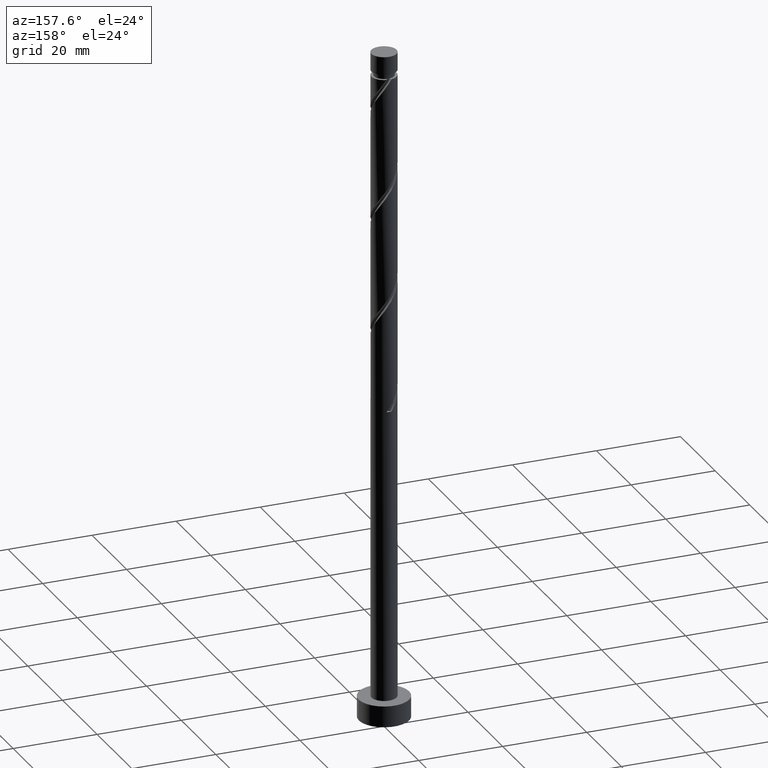
[diagram: clean part render]
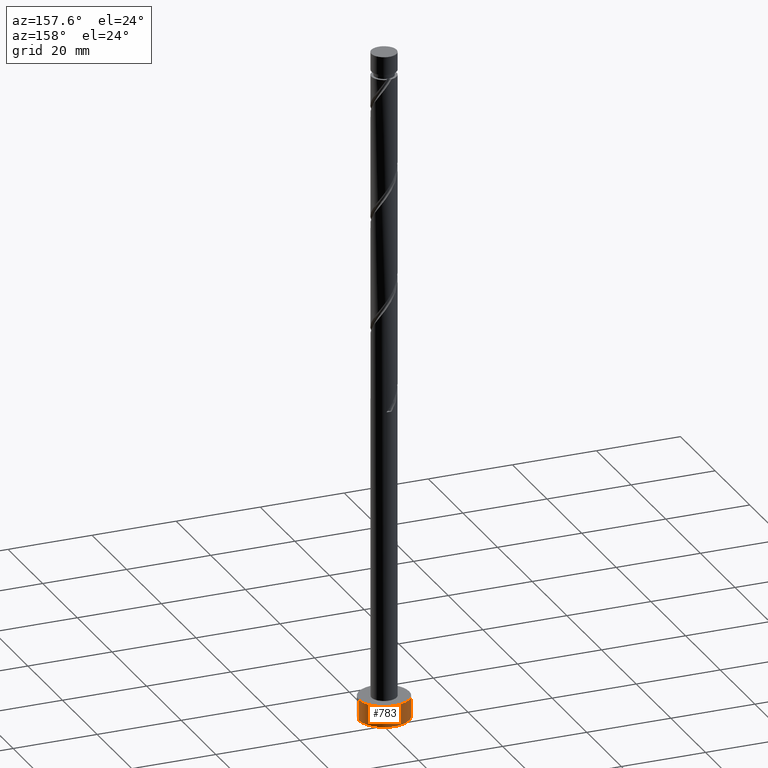
[diagram: same view with one face highlighted and labeled with its STEP entity id]
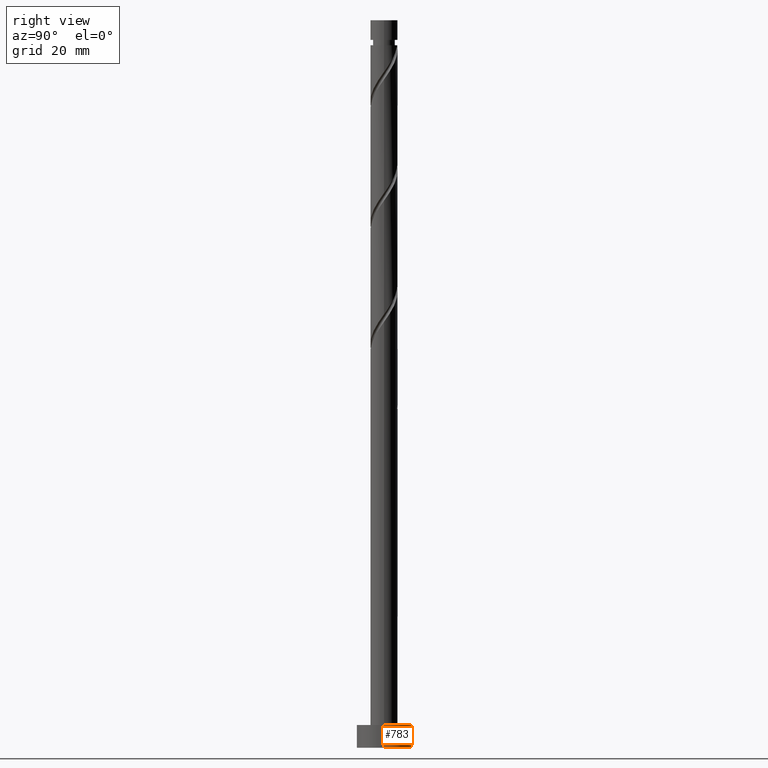
[diagram: same view with one face highlighted and labeled with its STEP entity id]
A machine part, auxiliary view. The second image highlights one B-rep face of the part: STEP entity #783.
A second angle (right view) of the same face is appended — the face is thin or edge-on in the first view.
In plain terms, the highlighted cylindrical surface (edge-blend (fillet) strip) has radius 6 mm, axis along (-0, -0, -1).
Its self-contained STEP definition (entity closure, byte-faithful):
#87 = DIRECTION ( 'NONE',  ( -0.000000000000000000, -0.000000000000000000, -1.000000000000000000 ) ) ;
#113 = CARTESIAN_POINT ( 'NONE',  ( 6.000000000000000888, 7.347880794884120722E-16, 5.000000000000000000 ) ) ;
#117 = CIRCLE ( 'NONE', #1319, 6.000000000000000888 ) ;
#211 = CARTESIAN_POINT ( 'NONE',  ( -6.000000000000000888, 0.000000000000000000, 0.000000000000000000 ) ) ;
#218 = CARTESIAN_POINT ( 'NONE',  ( -6.000000000000000888, 0.000000000000000000, 5.000000000000000000 ) ) ;
#287 = ORIENTED_EDGE ( 'NONE', *, *, #443, .F. ) ;
#344 = DIRECTION ( 'NONE',  ( 0.000000000000000000, 0.000000000000000000, 1.000000000000000000 ) ) ;
#353 = VERTEX_POINT ( 'NONE', #113 ) ;
#372 = DIRECTION ( 'NONE',  ( 0.000000000000000000, 0.000000000000000000, 1.000000000000000000 ) ) ;
#443 = EDGE_CURVE ( 'NONE', #353, #1312, #117, .T. ) ;
#458 = VERTEX_POINT ( 'NONE', #634 ) ;
#462 = EDGE_CURVE ( 'NONE', #353, #458, #1366, .T. ) ;
#482 = CARTESIAN_POINT ( 'NONE',  ( 0.000000000000000000, 0.000000000000000000, 0.000000000000000000 ) ) ;
#488 = CARTESIAN_POINT ( 'NONE',  ( 0.000000000000000000, 0.000000000000000000, 5.000000000000000000 ) ) ;
#500 = DIRECTION ( 'NONE',  ( -0.000000000000000000, -0.000000000000000000, -1.000000000000000000 ) ) ;
#511 = LINE ( 'NONE', #218, #1371 ) ;
#572 = EDGE_LOOP ( 'NONE', ( #287, #647, #1604, #1451 ) ) ;
#624 = AXIS2_PLACEMENT_3D ( 'NONE', #482, #344, #861 ) ;
#626 = CARTESIAN_POINT ( 'NONE',  ( 0.000000000000000000, 0.000000000000000000, 5.000000000000000000 ) ) ;
#634 = CARTESIAN_POINT ( 'NONE',  ( 6.000000000000000888, 7.347880794884120722E-16, 0.000000000000000000 ) ) ;
#647 = ORIENTED_EDGE ( 'NONE', *, *, #462, .T. ) ;
#710 = DIRECTION ( 'NONE',  ( -0.000000000000000000, -0.000000000000000000, -1.000000000000000000 ) ) ;
#711 = VERTEX_POINT ( 'NONE', #211 ) ;
#733 = DIRECTION ( 'NONE',  ( -1.000000000000000000, 0.000000000000000000, 0.000000000000000000 ) ) ;
#783 = ADVANCED_FACE ( 'NONE', ( #1601 ), #1360, .T. ) ;
#793 = EDGE_CURVE ( 'NONE', #458, #711, #970, .T. ) ;
#861 = DIRECTION ( 'NONE',  ( 1.000000000000000000, 0.000000000000000000, 0.000000000000000000 ) ) ;
#947 = VECTOR ( 'NONE', #500, 1000.000000000000000 ) ;
#970 = CIRCLE ( 'NONE', #624, 6.000000000000000888 ) ;
#1064 = EDGE_CURVE ( 'NONE', #1312, #711, #511, .T. ) ;
#1123 = CARTESIAN_POINT ( 'NONE',  ( 6.000000000000000888, 7.347880794884120722E-16, 5.000000000000000000 ) ) ;
#1176 = CARTESIAN_POINT ( 'NONE',  ( -6.000000000000000888, 0.000000000000000000, 5.000000000000000000 ) ) ;
#1312 = VERTEX_POINT ( 'NONE', #1176 ) ;
#1319 = AXIS2_PLACEMENT_3D ( 'NONE', #626, #372, #1625 ) ;
#1360 = CYLINDRICAL_SURFACE ( 'NONE', #1540, 6.000000000000000888 ) ;
#1366 = LINE ( 'NONE', #1123, #947 ) ;
#1371 = VECTOR ( 'NONE', #87, 1000.000000000000000 ) ;
#1451 = ORIENTED_EDGE ( 'NONE', *, *, #1064, .F. ) ;
#1540 = AXIS2_PLACEMENT_3D ( 'NONE', #488, #710, #733 ) ;
#1601 = FACE_OUTER_BOUND ( 'NONE', #572, .T. ) ;
#1604 = ORIENTED_EDGE ( 'NONE', *, *, #793, .T. ) ;
#1625 = DIRECTION ( 'NONE',  ( 1.000000000000000000, 0.000000000000000000, 0.000000000000000000 ) ) ;